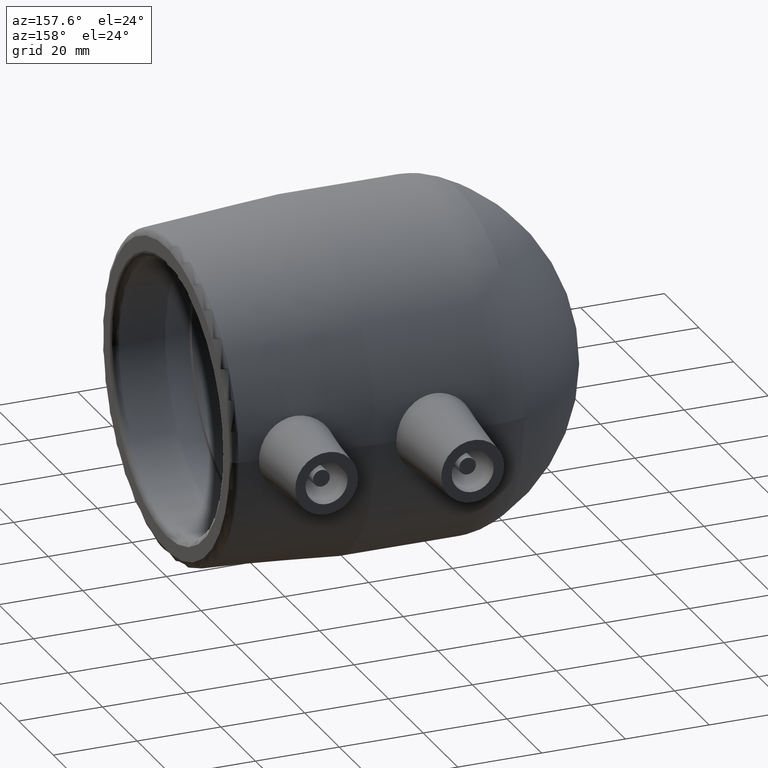
[diagram: clean part render]
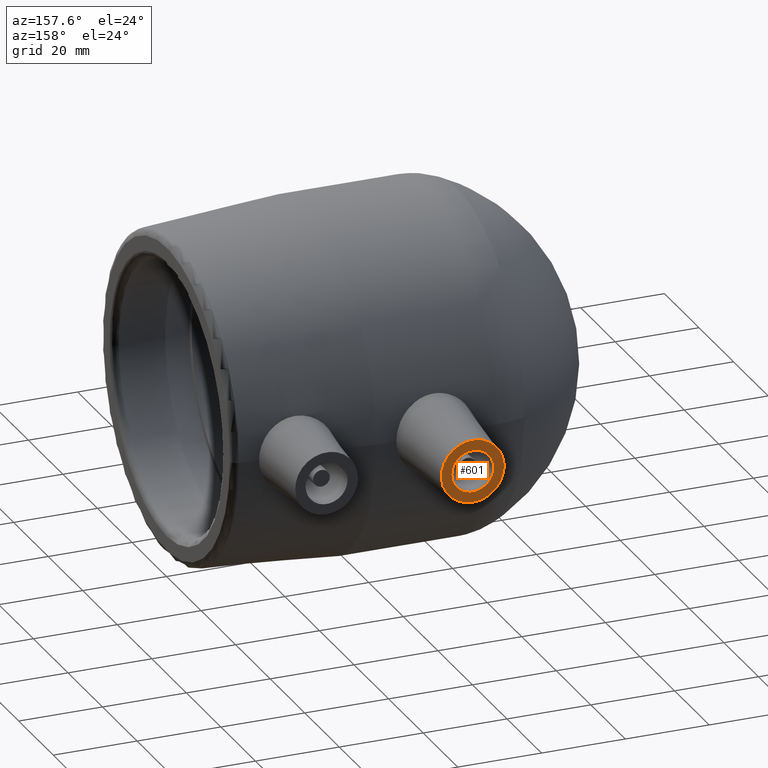
[diagram: same view with one face highlighted and labeled with its STEP entity id]
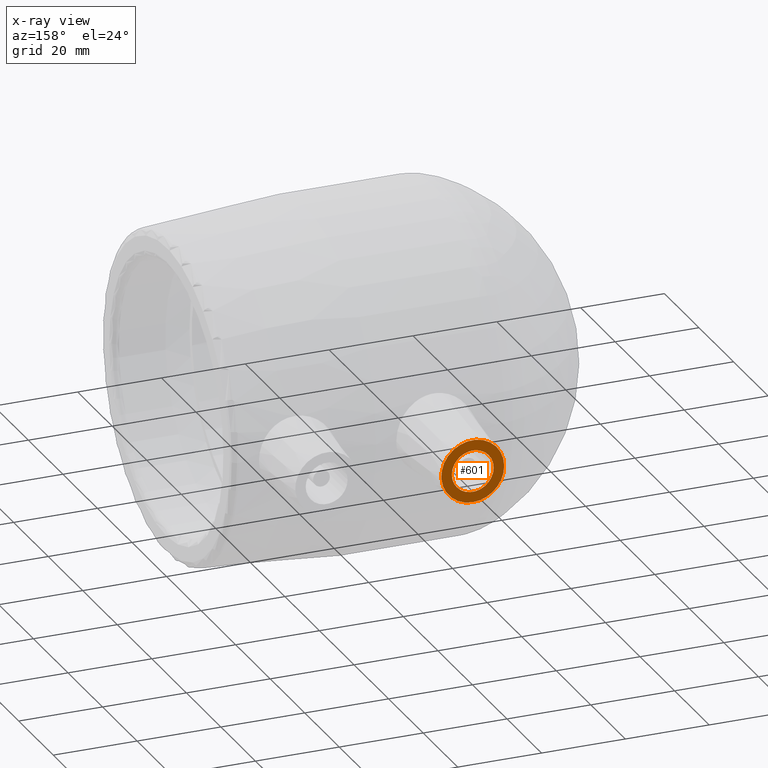
[diagram: x-ray of the same camera — body ghosted, the highlighted face saturated]
A machine part, auxiliary view. The second image highlights one B-rep face of the part: STEP entity #601.
The next image is the same camera in x-ray: the body ghosted, the highlighted face saturated — about 0% of this face is hidden behind the body in this view.
In plain terms, the highlighted planar face has unit normal (0, 1, 0).
Its self-contained STEP definition (entity closure, byte-faithful):
#26=FACE_BOUND('',#192,.T.);
#139=FACE_OUTER_BOUND('',#191,.T.);
#191=EDGE_LOOP('',(#509));
#192=EDGE_LOOP('',(#510));
#254=CIRCLE('',#679,5.);
#255=CIRCLE('',#682,7.5);
#307=VERTEX_POINT('',#1096);
#308=VERTEX_POINT('',#1100);
#382=EDGE_CURVE('',#307,#307,#254,.T.);
#383=EDGE_CURVE('',#308,#308,#255,.T.);
#509=ORIENTED_EDGE('',*,*,#383,.F.);
#510=ORIENTED_EDGE('',*,*,#382,.T.);
#568=PLANE('',#681);
#601=ADVANCED_FACE('',(#139,#26),#568,.T.);
#679=AXIS2_PLACEMENT_3D('',#1097,#852,#853);
#681=AXIS2_PLACEMENT_3D('',#1099,#856,#857);
#682=AXIS2_PLACEMENT_3D('',#1101,#858,#859);
#852=DIRECTION('center_axis',(0.,-1.,0.));
#853=DIRECTION('ref_axis',(-1.,0.,0.));
#856=DIRECTION('center_axis',(0.,1.,0.));
#857=DIRECTION('ref_axis',(0.,0.,1.));
#858=DIRECTION('center_axis',(0.,-1.,0.));
#859=DIRECTION('ref_axis',(1.,0.,0.));
#1096=CARTESIAN_POINT('',(-42.5,62.,-6.12323399573677E-16));
#1097=CARTESIAN_POINT('Origin',(-47.5,62.,0.));
#1099=CARTESIAN_POINT('Origin',(-47.5,62.,1.2335811384724E-16));
#1100=CARTESIAN_POINT('',(-55.,62.,9.18485099360515E-16));
#1101=CARTESIAN_POINT('Origin',(-47.5,62.,0.));